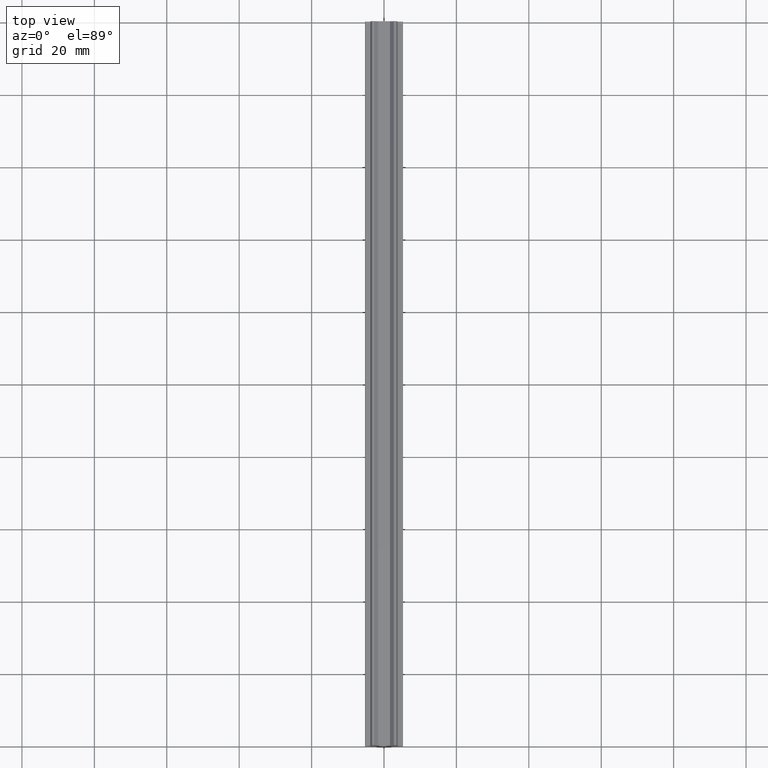
[diagram: clean part render]
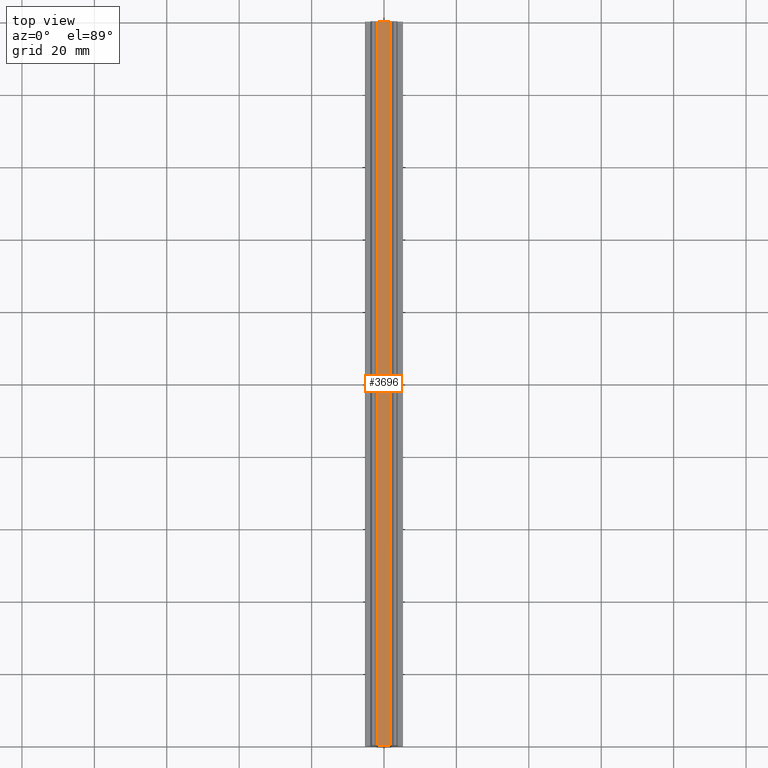
[diagram: same view with one face highlighted and labeled with its STEP entity id]
A machine part, top view. The second image highlights one B-rep face of the part: STEP entity #3696.
In plain terms, the highlighted face is a freeform B-spline surface patch.
Its self-contained STEP definition (entity closure, byte-faithful):
#51=CARTESIAN_POINT('',(1.649999999999970,0.0,0.0));
#52=VERTEX_POINT('',#51);
#58=CARTESIAN_POINT('',(-1.649999999999975,0.0,0.0));
#59=VERTEX_POINT('',#58);
#60=CARTESIAN_POINT('',(1.649999999999970,0.0,0.0));
#61=CARTESIAN_POINT('',(-1.649999999999975,0.0,0.0));
#62=QUASI_UNIFORM_CURVE('',1,(#60,#61),.UNSPECIFIED.,.F.,.U.);
#63=EDGE_CURVE('',#52,#59,#62,.T.);
#981=CARTESIAN_POINT('',(1.649999999999970,200.0,0.0));
#982=VERTEX_POINT('',#981);
#1739=CARTESIAN_POINT('',(-1.649999999999975,200.0,0.0));
#1740=VERTEX_POINT('',#1739);
#1746=CARTESIAN_POINT('',(1.649999999999970,200.0,0.0));
#1747=CARTESIAN_POINT('',(-1.649999999999975,200.0,0.0));
#1748=QUASI_UNIFORM_CURVE('',1,(#1746,#1747),.UNSPECIFIED.,.F.,.U.);
#1749=EDGE_CURVE('',#982,#1740,#1748,.T.);
#3671=CARTESIAN_POINT('',(-1.649999999999975,200.0,0.0));
#3672=CARTESIAN_POINT('',(-1.649999999999975,0.0,0.0));
#3673=QUASI_UNIFORM_CURVE('',1,(#3671,#3672),.UNSPECIFIED.,.F.,.U.);
#3674=EDGE_CURVE('',#1740,#59,#3673,.T.);
#3681=CARTESIAN_POINT('',(-1.814834993603932,-9.989999612361194,0.0));
#3682=CARTESIAN_POINT('',(1.814835082116824,-9.989999612361194,0.0));
#3683=CARTESIAN_POINT('',(-1.814834993603932,209.990004976779200,0.0));
#3684=CARTESIAN_POINT('',(1.814835082116824,209.990004976779200,0.0));
#3685=B_SPLINE_SURFACE_WITH_KNOTS('',1,1,((#3681,#3683),(#3682,#3684)),.UNSPECIFIED.,.F.,.F.,.U.,(2,2),(2,2),(0.0,3.629670075720756),(0.0,219.980004589140410),.UNSPECIFIED.);
#3686=ORIENTED_EDGE('',*,*,#63,.F.);
#3687=CARTESIAN_POINT('',(1.649999999999970,200.0,0.0));
#3688=CARTESIAN_POINT('',(1.649999999999970,0.0,0.0));
#3689=QUASI_UNIFORM_CURVE('',1,(#3687,#3688),.UNSPECIFIED.,.F.,.U.);
#3690=EDGE_CURVE('',#982,#52,#3689,.T.);
#3691=ORIENTED_EDGE('',*,*,#3690,.F.);
#3692=ORIENTED_EDGE('',*,*,#1749,.T.);
#3693=ORIENTED_EDGE('',*,*,#3674,.T.);
#3694=EDGE_LOOP('',(#3686,#3691,#3692,#3693));
#3695=FACE_OUTER_BOUND('',#3694,.T.);
#3696=ADVANCED_FACE('',(#3695),#3685,.T.);